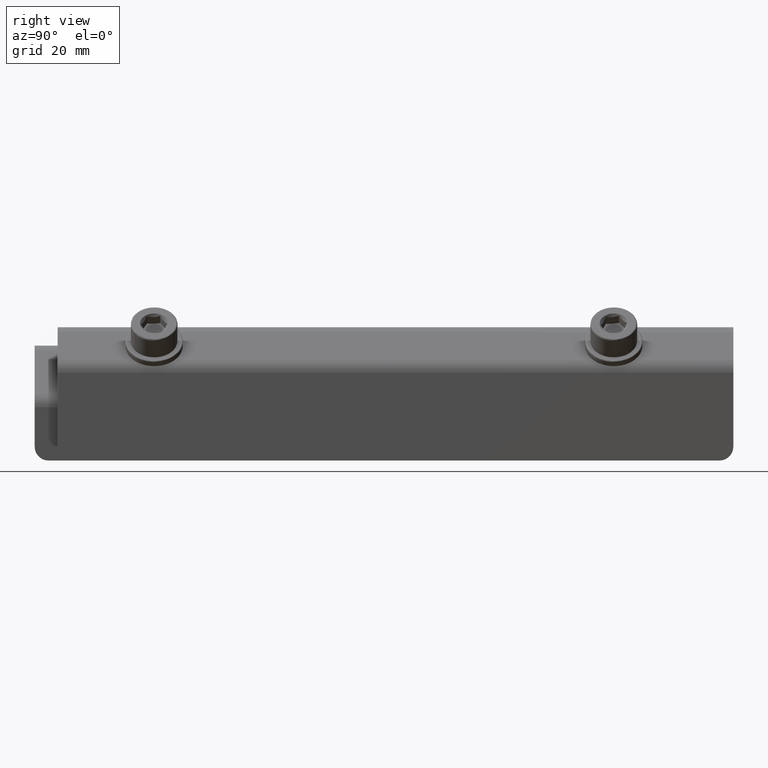
[diagram: clean part render]
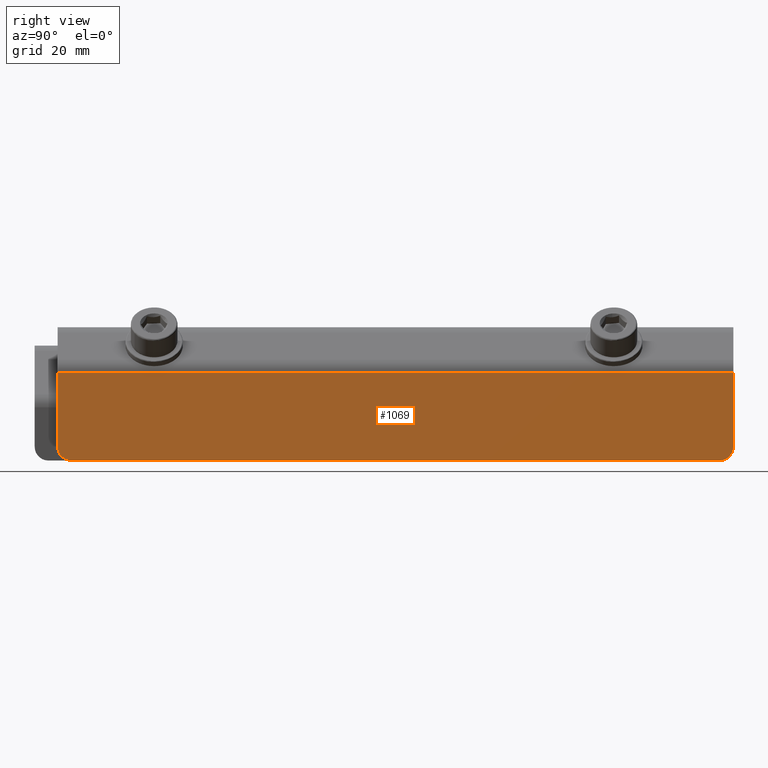
[diagram: same view with one face highlighted and labeled with its STEP entity id]
A machine part, right view. The second image highlights one B-rep face of the part: STEP entity #1069.
In plain terms, the highlighted planar face has unit normal (-1, 0, 0).
Its self-contained STEP definition (entity closure, byte-faithful):
#2 = ORIENTED_EDGE ( 'NONE', *, *, #263, .F. ) ;
#43 = CIRCLE ( 'NONE', #1523, 3.000000000000002665 ) ;
#83 = DIRECTION ( 'NONE',  ( 3.469446951953611033E-15, 0.000000000000000000, 1.000000000000000000 ) ) ;
#112 = ORIENTED_EDGE ( 'NONE', *, *, #1049, .F. ) ;
#184 = EDGE_CURVE ( 'NONE', #1981, #2444, #2921, .T. ) ;
#263 = EDGE_CURVE ( 'NONE', #4159, #1981, #4136, .T. ) ;
#272 = FACE_OUTER_BOUND ( 'NONE', #1939, .T. ) ;
#320 = VERTEX_POINT ( 'NONE', #4065 ) ;
#355 = VECTOR ( 'NONE', #1973, 1000.000000000000000 ) ;
#550 = PLANE ( 'NONE',  #4140 ) ;
#671 = ORIENTED_EDGE ( 'NONE', *, *, #4290, .F. ) ;
#731 = CARTESIAN_POINT ( 'NONE',  ( 25.35273443044423658, 72.28756298078297959, 139.4999999999998010 ) ) ;
#954 = DIRECTION ( 'NONE',  ( -3.330669073875468832E-15, -1.962615573354715446E-16, -1.000000000000000000 ) ) ;
#1027 = CARTESIAN_POINT ( 'NONE',  ( 25.35273443044420816, -71.71243701921700620, 139.4999999999998295 ) ) ;
#1049 = EDGE_CURVE ( 'NONE', #320, #2423, #1490, .T. ) ;
#1069 = ADVANCED_FACE ( 'NONE', ( #272 ), #550, .F. ) ;
#1267 = CARTESIAN_POINT ( 'NONE',  ( 25.35273443044420816, -74.91243701921700904, 139.4999999999998295 ) ) ;
#1490 = LINE ( 'NONE', #2158, #2123 ) ;
#1523 = AXIS2_PLACEMENT_3D ( 'NONE', #2472, #3108, #83 ) ;
#1602 = LINE ( 'NONE', #4343, #3627 ) ;
#1716 = LINE ( 'NONE', #731, #3058 ) ;
#1939 = EDGE_LOOP ( 'NONE', ( #4277, #3540, #2, #671, #112, #3360 ) ) ;
#1956 = DIRECTION ( 'NONE',  ( -1.000000000000000000, 1.962615573354721855E-16, 3.330669073875468832E-15 ) ) ;
#1973 = DIRECTION ( 'NONE',  ( -1.962615573354715199E-16, -1.000000000000000000, 1.962615573354722102E-16 ) ) ;
#1981 = VERTEX_POINT ( 'NONE', #2719 ) ;
#2123 = VECTOR ( 'NONE', #2963, 1000.000000000000000 ) ;
#2158 = CARTESIAN_POINT ( 'NONE',  ( 25.35273443044427211, -74.91243701921700904, 158.6005050633881979 ) ) ;
#2365 = VERTEX_POINT ( 'NONE', #3037 ) ;
#2423 = VERTEX_POINT ( 'NONE', #4033 ) ;
#2444 = VERTEX_POINT ( 'NONE', #1027 ) ;
#2472 = CARTESIAN_POINT ( 'NONE',  ( 25.35273443044421882, -71.71243701921700620, 142.4999999999998295 ) ) ;
#2656 = CARTESIAN_POINT ( 'NONE',  ( 25.35273443044420816, -74.91243701921700904, 139.4999999999998295 ) ) ;
#2684 = DIRECTION ( 'NONE',  ( 3.330669073875468832E-15, 1.962615573354715446E-16, 1.000000000000000000 ) ) ;
#2719 = CARTESIAN_POINT ( 'NONE',  ( 25.35273443044423658, 69.28756298078299380, 139.4999999999998010 ) ) ;
#2724 = DIRECTION ( 'NONE',  ( -1.000000000000000000, 1.962615573354721855E-16, 3.330669073875468832E-15 ) ) ;
#2921 = LINE ( 'NONE', #2656, #355 ) ;
#2963 = DIRECTION ( 'NONE',  ( 1.962615573354715199E-16, 1.000000000000000000, -1.962615573354722102E-16 ) ) ;
#3020 = CARTESIAN_POINT ( 'NONE',  ( 25.35273443044424724, 72.28756298078299380, 142.4999999999998010 ) ) ;
#3034 = AXIS2_PLACEMENT_3D ( 'NONE', #3091, #2724, #3433 ) ;
#3037 = CARTESIAN_POINT ( 'NONE',  ( 25.35273443044421526, -74.71243701921700620, 142.4999999999998295 ) ) ;
#3058 = VECTOR ( 'NONE', #3443, 1000.000000000000000 ) ;
#3091 = CARTESIAN_POINT ( 'NONE',  ( 25.35273443044424724, 69.28756298078299380, 142.4999999999998010 ) ) ;
#3108 = DIRECTION ( 'NONE',  ( -1.000000000000000000, 1.962615573354721855E-16, 3.330669073875468832E-15 ) ) ;
#3360 = ORIENTED_EDGE ( 'NONE', *, *, #3616, .F. ) ;
#3433 = DIRECTION ( 'NONE',  ( -3.469446951953611033E-15, 0.000000000000000000, -1.000000000000000000 ) ) ;
#3443 = DIRECTION ( 'NONE',  ( -3.330669073875468832E-15, -1.962615573354715446E-16, -1.000000000000000000 ) ) ;
#3540 = ORIENTED_EDGE ( 'NONE', *, *, #184, .F. ) ;
#3616 = EDGE_CURVE ( 'NONE', #2365, #320, #1602, .T. ) ;
#3627 = VECTOR ( 'NONE', #2684, 1000.000000000000000 ) ;
#3925 = EDGE_CURVE ( 'NONE', #2444, #2365, #43, .T. ) ;
#4033 = CARTESIAN_POINT ( 'NONE',  ( 25.35273443044430053, 72.28756298078299380, 158.6005050633881410 ) ) ;
#4065 = CARTESIAN_POINT ( 'NONE',  ( 25.35273443044427211, -74.71243701921700620, 158.6005050633881979 ) ) ;
#4136 = CIRCLE ( 'NONE', #3034, 3.000000000000002665 ) ;
#4140 = AXIS2_PLACEMENT_3D ( 'NONE', #1267, #1956, #954 ) ;
#4159 = VERTEX_POINT ( 'NONE', #3020 ) ;
#4277 = ORIENTED_EDGE ( 'NONE', *, *, #3925, .F. ) ;
#4290 = EDGE_CURVE ( 'NONE', #2423, #4159, #1716, .T. ) ;
#4343 = CARTESIAN_POINT ( 'NONE',  ( 25.35273443044420816, -74.71243701921700620, 139.4999999999998295 ) ) ;